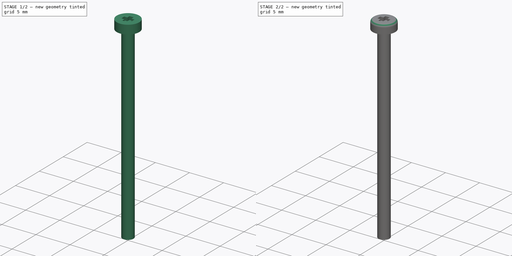
[diagram: build sequence overview — one tinted view per stage of 2, left to right]
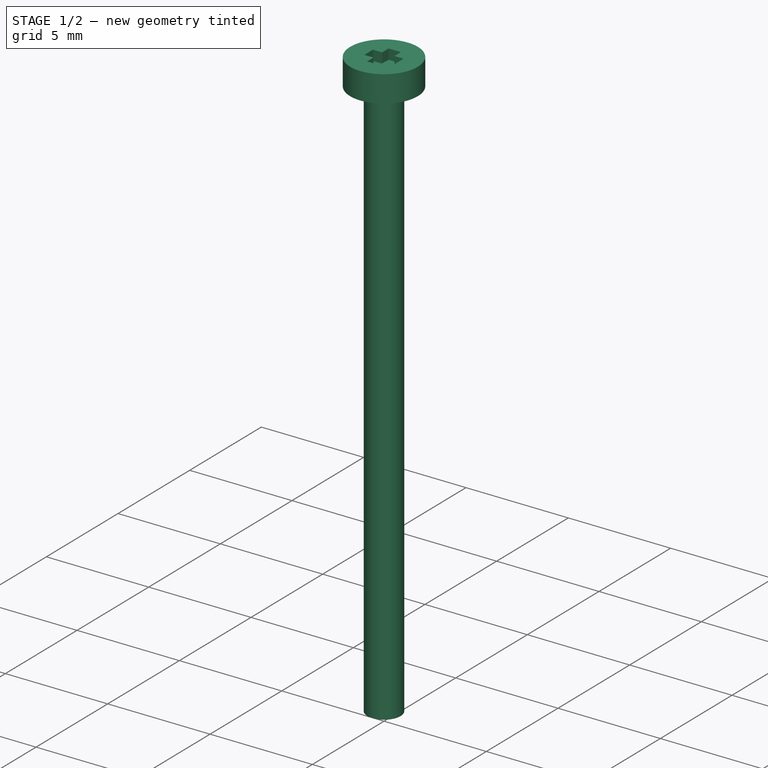
[diagram: stage 1 of 2 — iso view after this stage's code; geometry added in this stage tinted green]
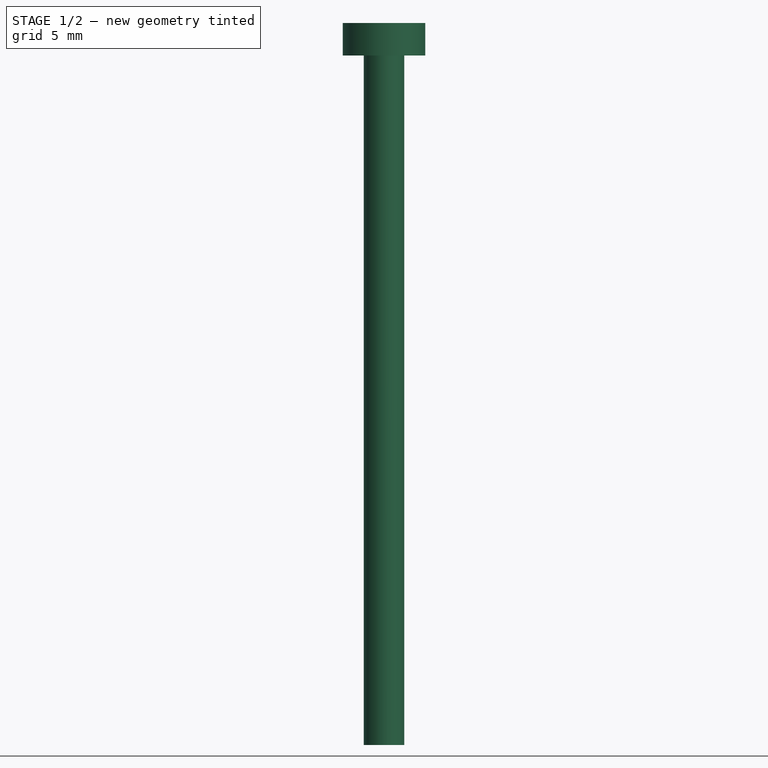
[diagram: stage 1 of 2 — front view after this stage's code; geometry added in this stage tinted green]
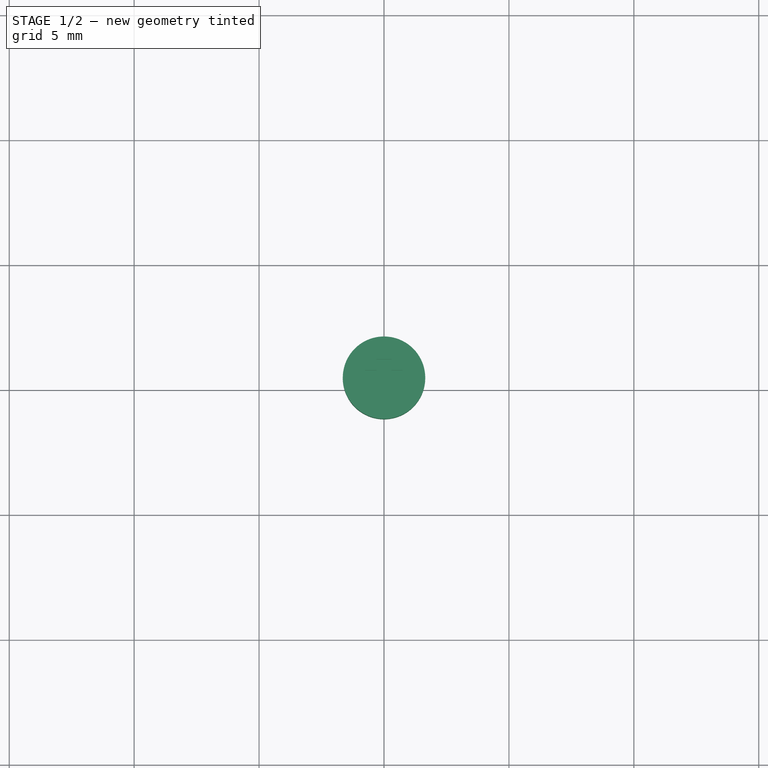
[diagram: stage 1 of 2 — top view after this stage's code; geometry added in this stage tinted green]
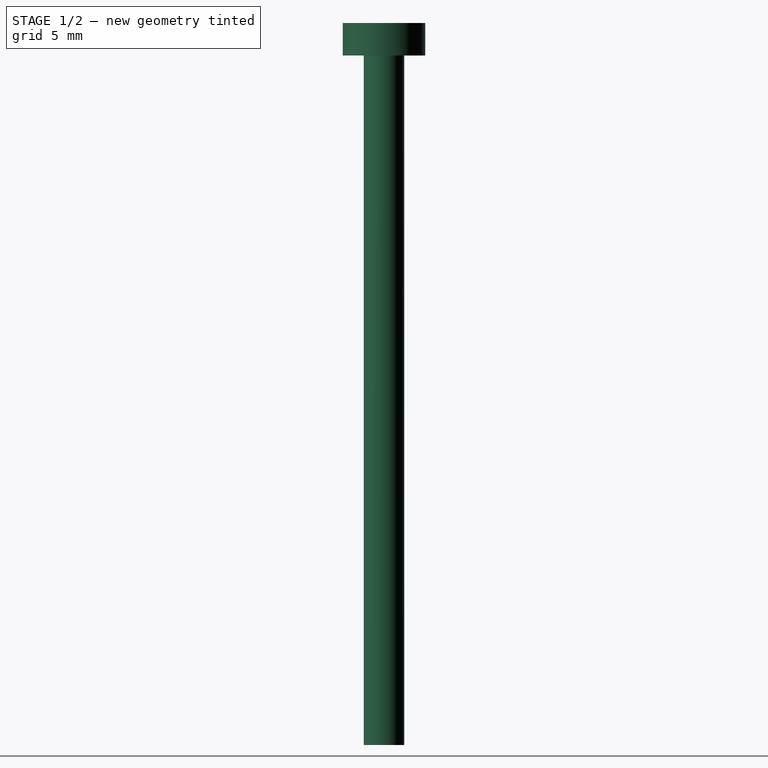
[diagram: stage 1 of 2 — right view after this stage's code; geometry added in this stage tinted green]
FCSTD DOCUMENT  (FreeCAD 0.14R3702 (Git))
Label: Futaba3003-bottom-bolt
License: CC-BY 3.0
LicenseURL: http://creativecommons.org/licenses/by/3.0/
objects: Sketcher::SketchObject×2, PartDesign::Revolution×1, PartDesign::Pocket×1, PartDesign::Fillet×1
note: 7 computed .brp shape members not serialized (recipe doc carries the construction recipe); baked Part::Feature solids carry a one-line shape summary decoded from their .brp

FEATURE [Sketcher::SketchObject] Sketch001
  Placement = pos=(0,0,0) rot=(1,0,0;1.5708rad)
  sketch-geometry (6):
    g0: LineSegment StartX=0 StartY=0 StartZ=0 EndX=0.81 EndY=0 EndZ=0
    g1: LineSegment StartX=0.81 StartY=0 StartZ=0 EndX=0.81 EndY=27.6 EndZ=0
    g2: LineSegment StartX=0 StartY=28.9 StartZ=0 EndX=0 EndY=0 EndZ=0
    g3: LineSegment StartX=0.81 StartY=27.6 StartZ=0 EndX=1.65 EndY=27.6 EndZ=0
    g4: LineSegment StartX=1.65 StartY=27.6 StartZ=0 EndX=1.65 EndY=28.9 EndZ=0
    g5: LineSegment StartX=1.65 StartY=28.9 StartZ=0 EndX=0 EndY=28.9 EndZ=0
  constraints (17):
    c: Coincident(g0,g1)
    c: Coincident(g2,g0)
    c: Horizontal(g0)
    c: Vertical(g1)
    c: Vertical(g2)
    c: Coincident(g0,g-1)
    c: Coincident(g3,g4)
    c: Coincident(g4,g5)
    c: Coincident(g2,g5)
    c: Horizontal(g5)
    c: Coincident(g3,g1)
    c: Horizontal(g3)
    c: Vertical(g4)
    c: DistanceY(g2) = -28.9
    c: DistanceX(g0) = 0.81
    c: DistanceX(g5) = -1.65
    c: DistanceY(g4) = 1.3
FEATURE [PartDesign::Revolution] Revolution  label="screw-shape"
  Angle = 360
  Axis = (0,0,1)
  Base = (0,0,0)
  Placement = pos=(0,0,0) rot=(1,0,0;1.5708rad)
  ReferenceAxis = -> Sketch001 [V_Axis]
  Reversed = true
  Sketch = -> Sketch001
FEATURE [Sketcher::SketchObject] Sketch  label="screw-cross-sketch"
  Placement = pos=(0,0,28.9) rot=(0,0,1;3.14159rad)
  Support = -> Revolution [Face5]
  sketch-geometry (12):
    g0: LineSegment StartX=-0.3 StartY=0.75 StartZ=0 EndX=0.3 EndY=0.75 EndZ=0
    g1: LineSegment StartX=0.3 StartY=0.75 StartZ=0 EndX=0.3 EndY=0.3 EndZ=0
    g2: LineSegment StartX=0.3 StartY=-0.75 StartZ=0 EndX=-0.3 EndY=-0.75 EndZ=0
    g3: LineSegment StartX=-0.3 StartY=-0.75 StartZ=0 EndX=-0.3 EndY=-0.3 EndZ=0
    g4: LineSegment StartX=-0.75 StartY=0.3 StartZ=0 EndX=-0.3 EndY=0.3 EndZ=0
    g5: LineSegment StartX=0.75 StartY=0.3 StartZ=0 EndX=0.75 EndY=-0.3 EndZ=0
    g6: LineSegment StartX=0.75 StartY=-0.3 StartZ=0 EndX=0.3 EndY=-0.3 EndZ=0
    g7: LineSegment StartX=-0.75 StartY=-0.3 StartZ=0 EndX=-0.75 EndY=0.3 EndZ=0
    g8: LineSegment StartX=-0.3 StartY=0.3 StartZ=0 EndX=-0.3 EndY=0.75 EndZ=0
    g9: LineSegment StartX=0.3 StartY=-0.3 StartZ=0 EndX=0.3 EndY=-0.75 EndZ=0
    g10: LineSegment StartX=0.3 StartY=0.3 StartZ=0 EndX=0.75 EndY=0.3 EndZ=0
    g11: LineSegment StartX=-0.3 StartY=-0.3 StartZ=0 EndX=-0.75 EndY=-0.3 EndZ=0
  constraints (30):
    c: Coincident(g0,g1)
    c: Coincident(g9,g2)
    c: Coincident(g2,g3)
    c: Coincident(g8,g0)
    c: Horizontal(g0)
    c: Horizontal(g2)
    c: Vertical(g1)
    c: Vertical(g3)
    c: Symmetric(g0,g9,g-1)
    c: Coincident(g10,g5)
    c: Coincident(g5,g6)
    c: Coincident(g11,g7)
    c: Coincident(g7,g4)
    c: Horizontal(g4)
    c: Horizontal(g6)
    c: Vertical(g5)
    c: Vertical(g7)
    c: Symmetric(g4,g5,g-1)
    c: Tangent(g3,g8)
    c: Tangent(g1,g9)
    c: Coincident(g4,g8)
    c: Coincident(g10,g1)
    c: Tangent(g4,g10)
    c: Coincident(g6,g9)
    c: Coincident(g11,g3)
    c: Tangent(g6,g11)
    c: Equal(g0,g7)
    c: Equal(g8,g4)
    c: DistanceX(g4,g5) = 1.5
    c: DistanceX(g0) = 0.6
FEATURE [PartDesign::Pocket] Pocket  label="screw-cross"
  Length = 0.5
  Placement = pos=(0,0,0) rot=(1,0,0;1.5708rad)
  Sketch = -> Sketch
  Type = 0
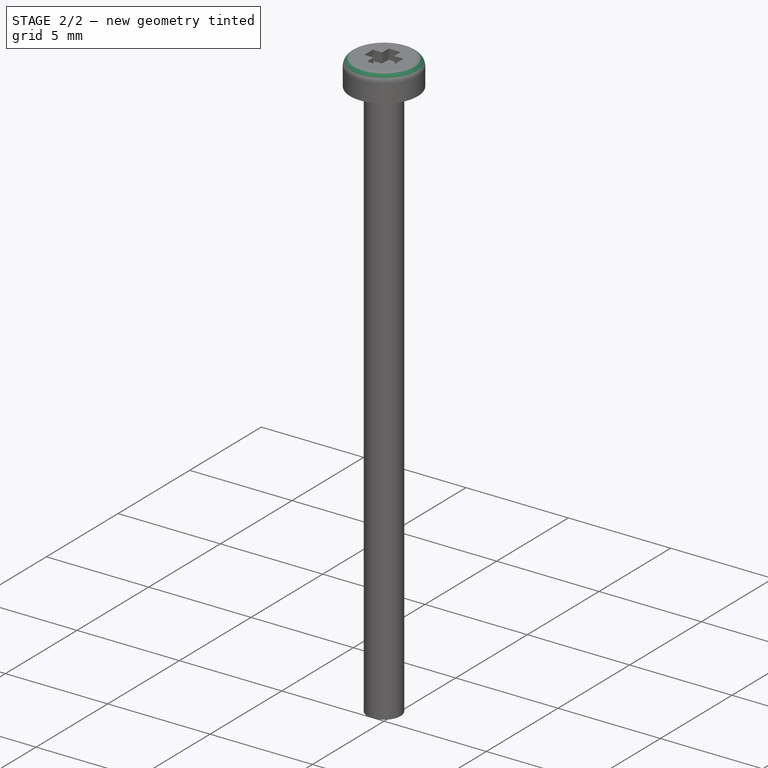
[diagram: stage 2 of 2 — iso view after this stage's code; geometry added in this stage tinted green]
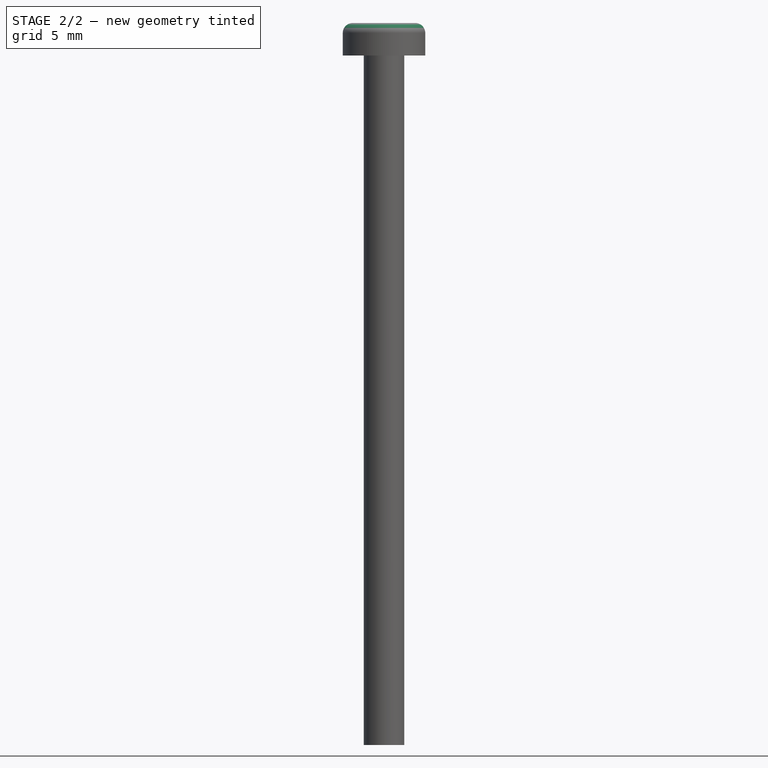
[diagram: stage 2 of 2 — front view after this stage's code; geometry added in this stage tinted green]
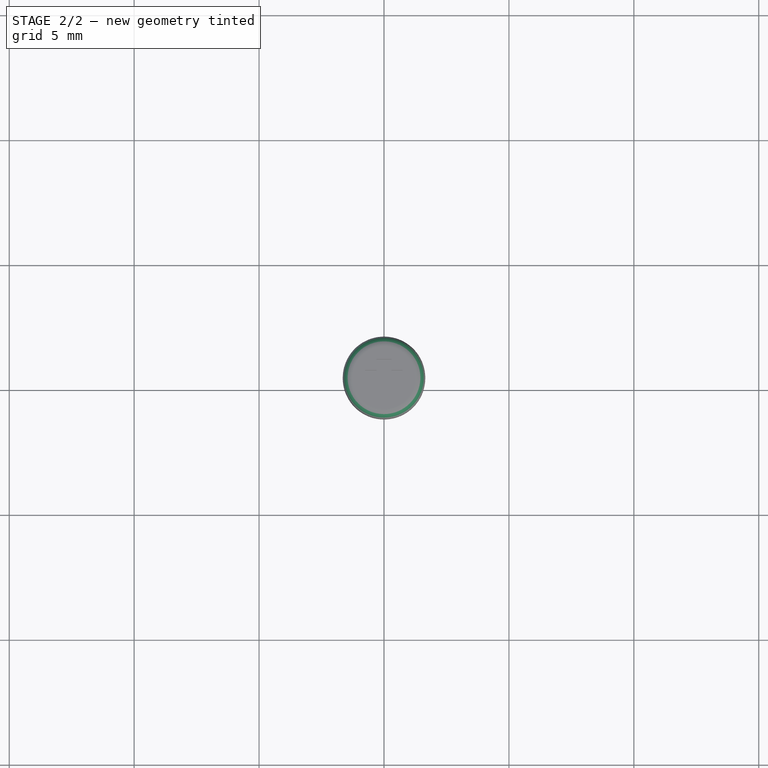
[diagram: stage 2 of 2 — top view after this stage's code; geometry added in this stage tinted green]
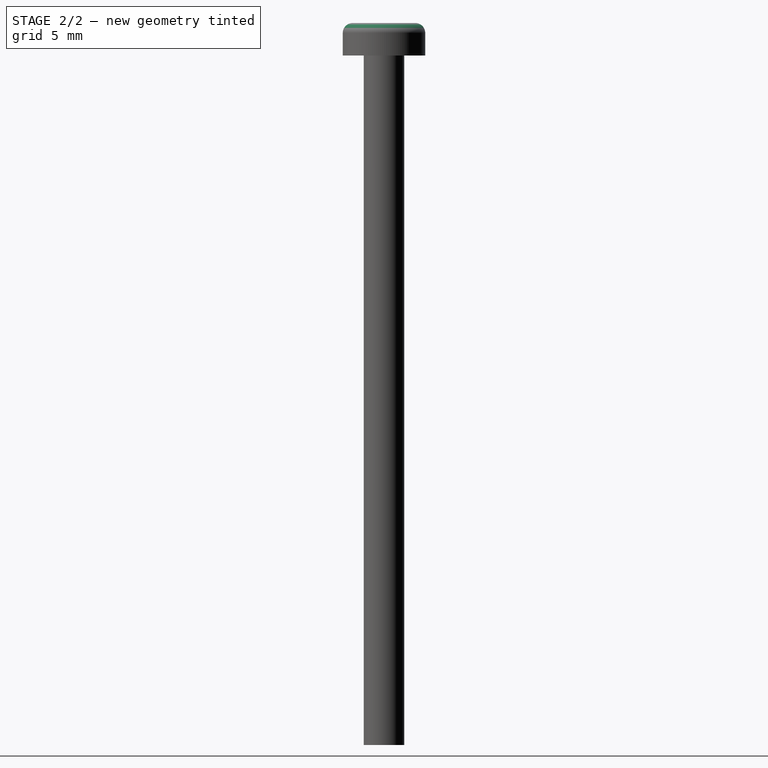
[diagram: stage 2 of 2 — right view after this stage's code; geometry added in this stage tinted green]
FEATURE [PartDesign::Fillet] Fillet004  label="servo-screw-final1"
  Base = -> Pocket [Edge5]
  Placement = pos=(0,0,0) rot=(1,0,0;1.5708rad)
  Radius = 0.4
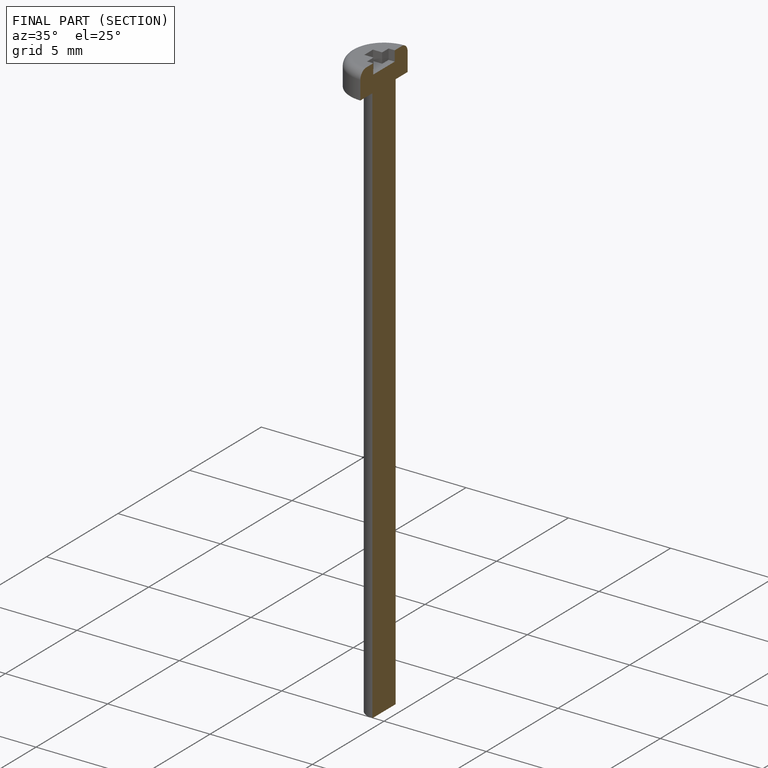
[diagram: finished part — half-section view (interior)]
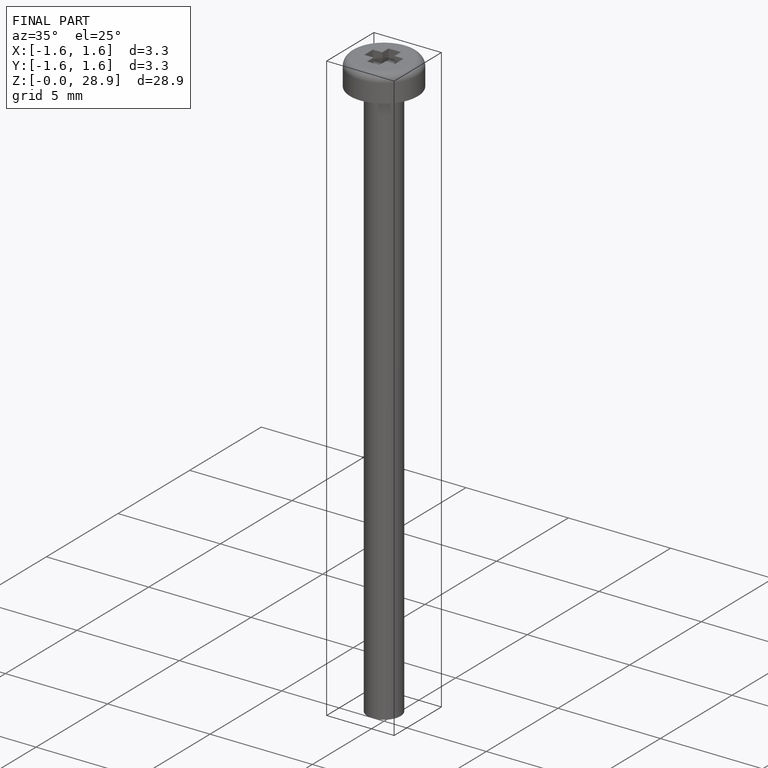
[diagram: finished part — iso view with bounding-box wireframe]
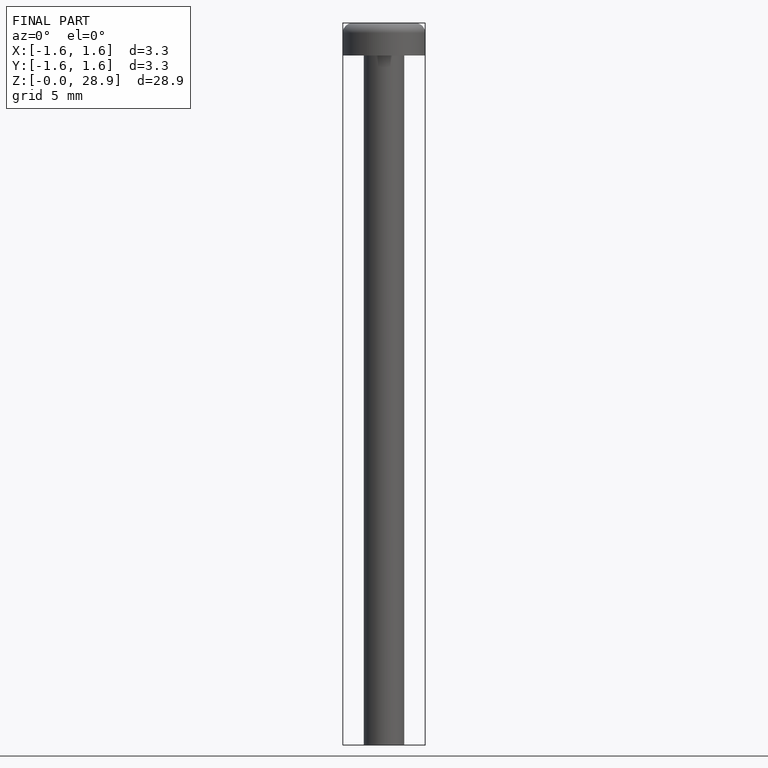
[diagram: finished part — front view with bounding-box wireframe]
